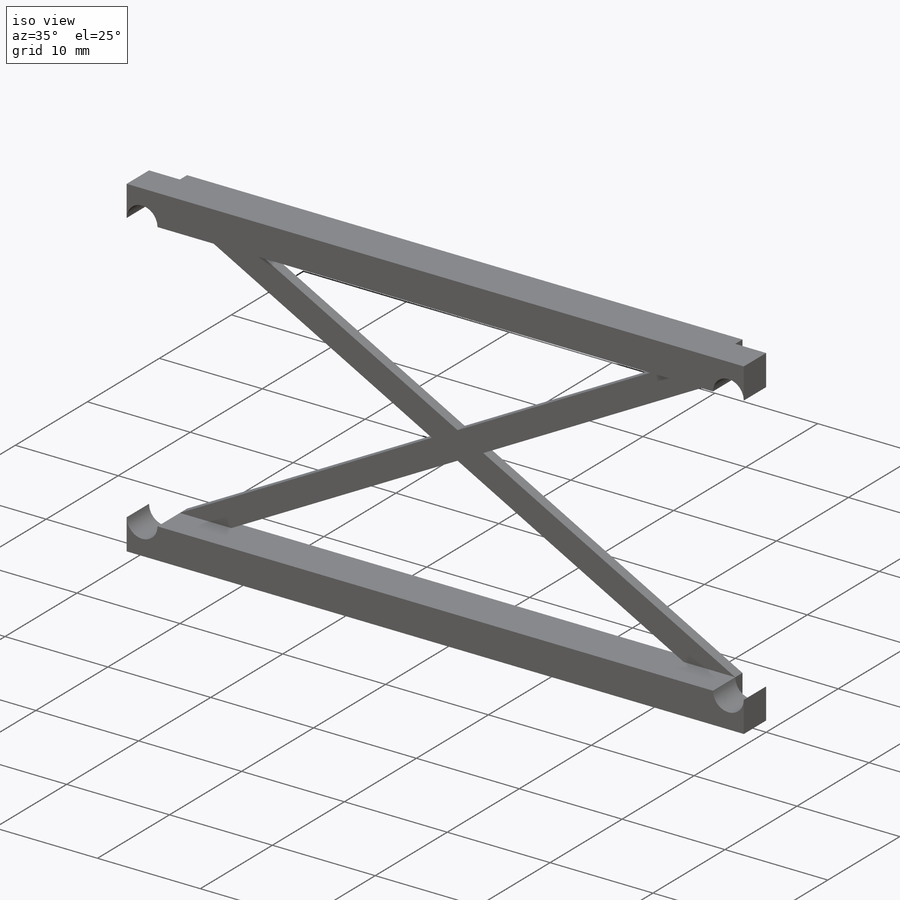
[diagram: iso view]
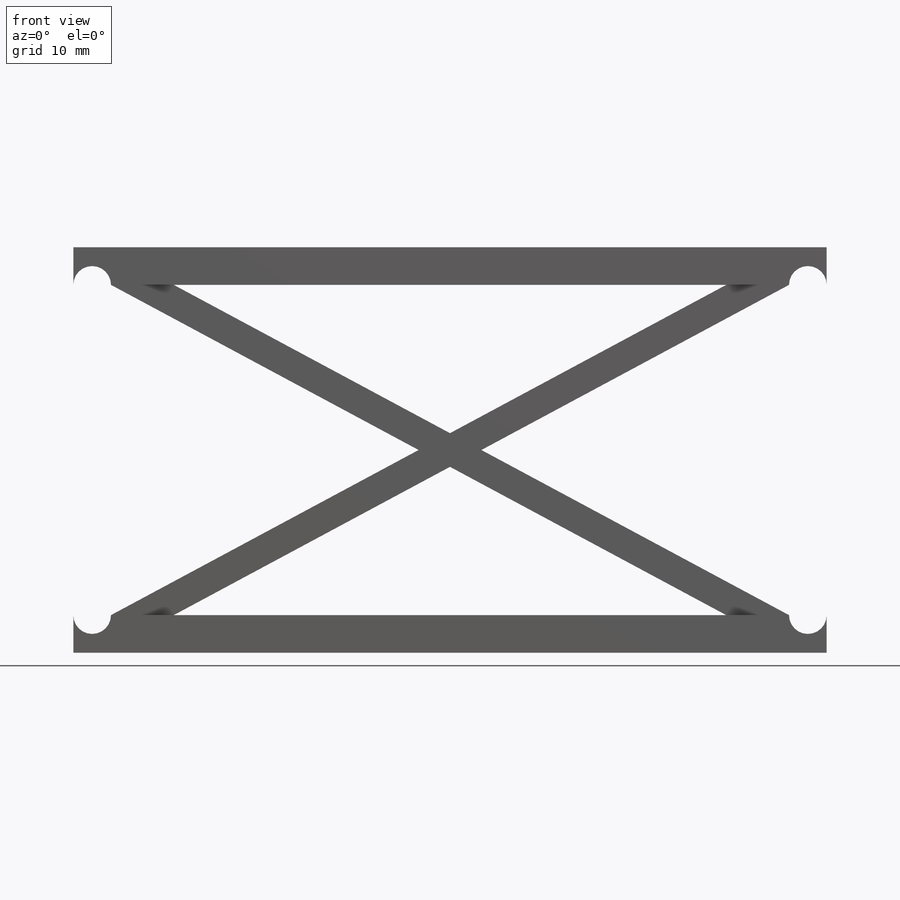
[diagram: front view]
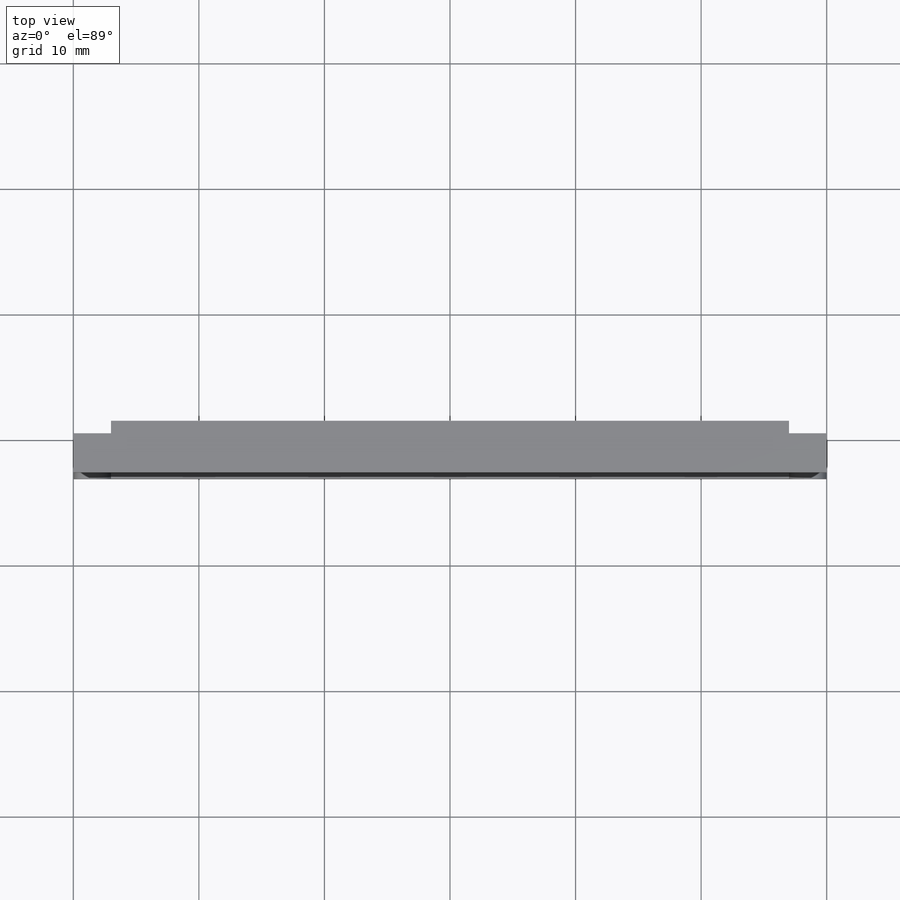
[diagram: top view]
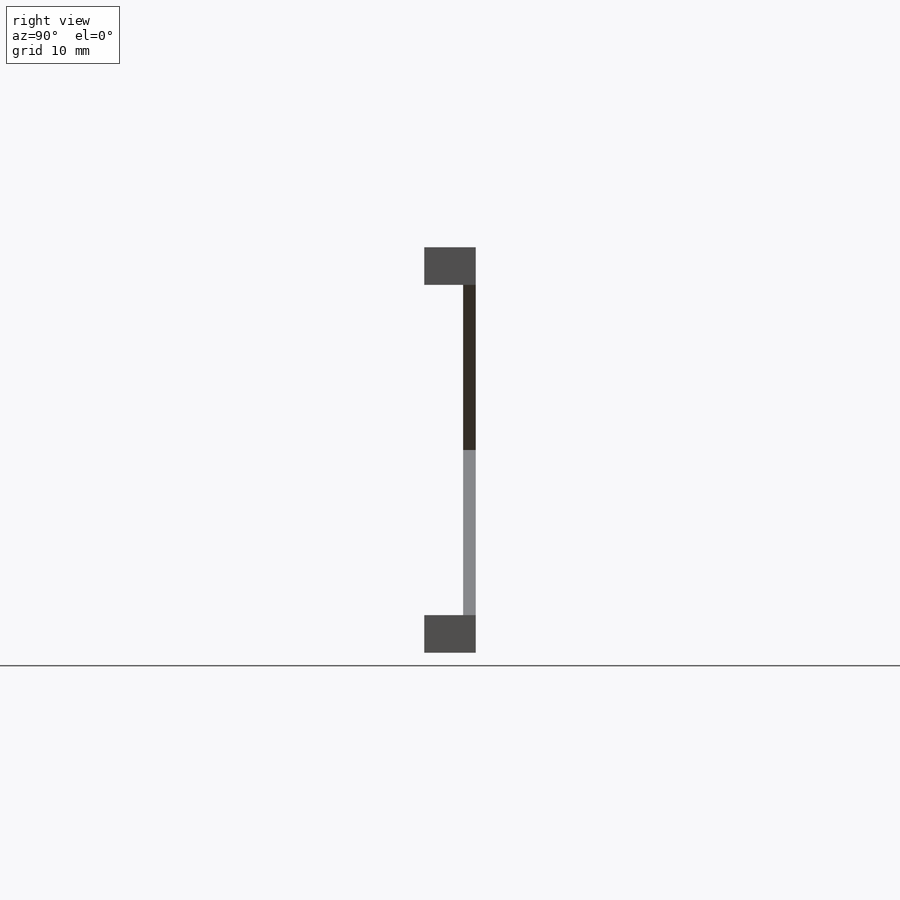
[diagram: right view]
SOLIDWORKS PART (.sldprt)
format: sldprt  version: not decoded by parser v0  size: 277,504 bytes
history: native  units: mm
features: sketch x5, extrude x3, material x1, cut_extrude x1 (+13 scaffold rows collapsed)
feature tree (23):
  scaffold x13  (default folders/planes/origin — collapsed)
  material  "Material <not specified>"
  sketch  "male_origin"  dims[c1.D9=1.5mm c1.D1=30.0mm c1.D2=10.0mm c1.D3=10.0mm c1.D4=7.0mm c1.D5=3.0mm c2.D2=3.0mm c2.D3=10.0mm c2.D4=20.0mm c2.D6=10.0mm c2.D7=30.0mm c2.D8=3.0mm c2.D10=27.0mm c2.D11=10.0mm c2.D12=27.0mm]
  sketch  "female_slide"  dims[c1.D2=3.0mm c1.D3=3.0mm c1.D1=13.15mm c1.D4=13.15mm c1.D5=60.0mm c2.D1=0.15mm]
  sketch  "X_back"  dims[c1.D1=5.0mm c1.D2=5.0mm c1.D3=5.0mm c1.D4=5.0mm c1.D5=5.0mm c2.D2=3.0mm c2.D3=~27.80598mm c2.D4=~27.691169mm]
  extrude  "Boss-Extrude1"  Depth=3.1mm
  extrude  "Boss-Extrude2"  Depth=1mm
  sketch  "Sketch1"
  cut_extrude  "Cut-Extrude1"  [1 undecoded]
  sketch  "Sketch2"  dims[D1=5.0mm]
  extrude  "Boss-Extrude3"  Depth=1mm
decode coverage: 7 of 9 modeling features carry decoded parameters
note: ~ marks probable driven/reference dimensions
note: 1 parameter value undecoded
note: suppression state not decoded; provenance and decode notes live in map.json
